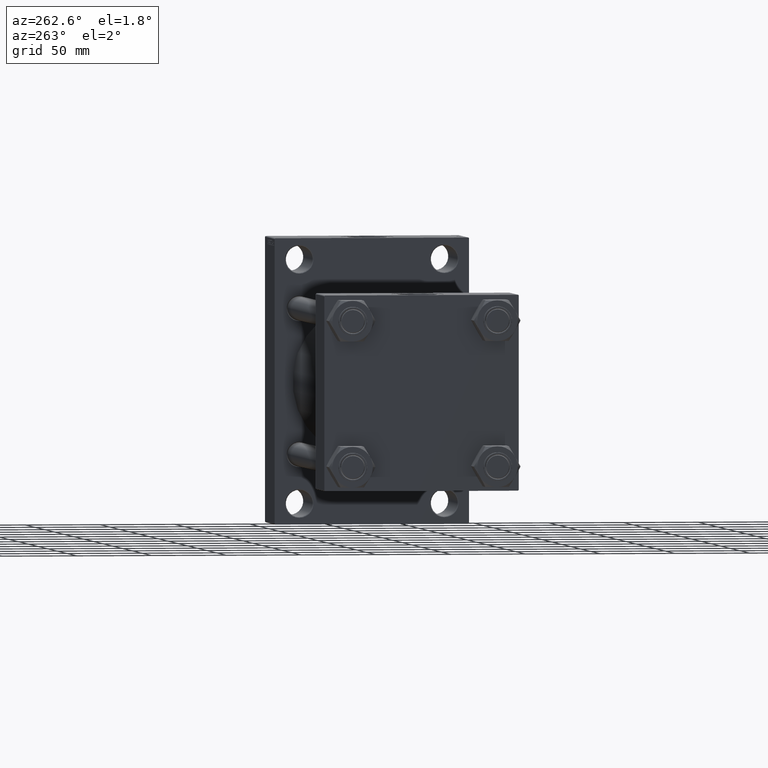
[diagram: clean part render]
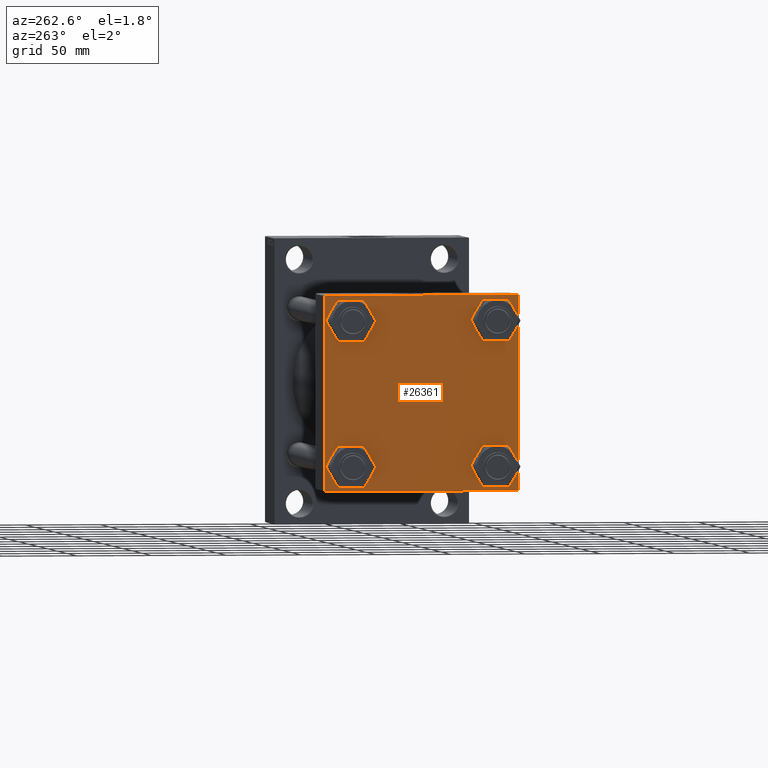
[diagram: same view with one face highlighted and labeled with its STEP entity id]
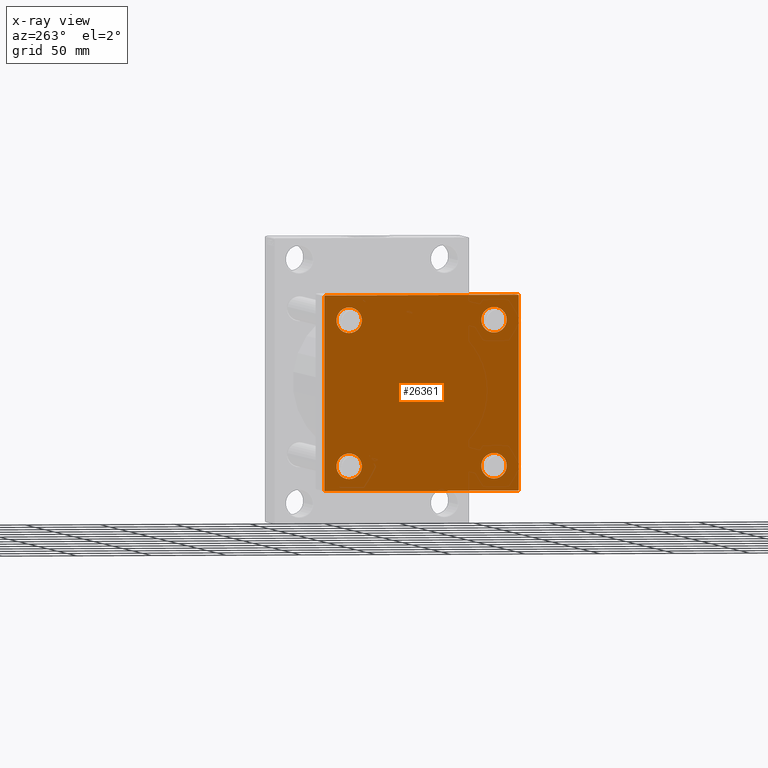
[diagram: x-ray of the same camera — body ghosted, the highlighted face saturated]
A machine part, auxiliary view. The second image highlights one B-rep face of the part: STEP entity #26361.
The next image is the same camera in x-ray: the body ghosted, the highlighted face saturated — about 0% of this face is hidden behind the body in this view.
In plain terms, the highlighted planar face has unit normal (-1, 0, 0).
Its self-contained STEP definition (entity closure, byte-faithful):
#84 = CARTESIAN_POINT ( 'NONE',  ( 0.000000000000000000, 65.00000000000000000, -64.49999999999995737 ) ) ;
#361 = CARTESIAN_POINT ( 'NONE',  ( 0.000000000000000000, 64.74999999999997158, -64.74999999999997158 ) ) ;
#411 = CIRCLE ( 'NONE', #21486, 8.500000000000007105 ) ;
#831 = VERTEX_POINT ( 'NONE', #26795 ) ;
#913 = CIRCLE ( 'NONE', #7170, 8.500000000000007105 ) ;
#1981 = EDGE_CURVE ( 'NONE', #13944, #23304, #4026, .T. ) ;
#2153 = CARTESIAN_POINT ( 'NONE',  ( 0.000000000000000000, 65.00000000000000000, 65.00000000000001421 ) ) ;
#2201 = VECTOR ( 'NONE', #7361, 1000.000000000000000 ) ;
#2668 = AXIS2_PLACEMENT_3D ( 'NONE', #37751, #15522, #48285 ) ;
#3362 = ORIENTED_EDGE ( 'NONE', *, *, #38425, .T. ) ;
#3982 = AXIS2_PLACEMENT_3D ( 'NONE', #16800, #13141, #38800 ) ;
#4026 = LINE ( 'NONE', #361, #41813 ) ;
#4498 = EDGE_LOOP ( 'NONE', ( #26412, #12221 ) ) ;
#4584 = EDGE_CURVE ( 'NONE', #18724, #19617, #913, .T. ) ;
#4611 = ORIENTED_EDGE ( 'NONE', *, *, #29134, .T. ) ;
#5564 = CARTESIAN_POINT ( 'NONE',  ( 0.000000000000000000, -64.49999999999994316, -65.00000000000000000 ) ) ;
#5777 = CIRCLE ( 'NONE', #19035, 8.500000000000007105 ) ;
#5794 = EDGE_CURVE ( 'NONE', #9395, #34525, #20474, .T. ) ;
#6263 = CARTESIAN_POINT ( 'NONE',  ( 0.000000000000000000, 48.45000000000000995, 56.95000000000002416 ) ) ;
#6292 = ORIENTED_EDGE ( 'NONE', *, *, #35714, .T. ) ;
#6336 = EDGE_LOOP ( 'NONE', ( #11647, #4611 ) ) ;
#6811 = VECTOR ( 'NONE', #32198, 1000.000000000000000 ) ;
#7170 = AXIS2_PLACEMENT_3D ( 'NONE', #16137, #42276, #42992 ) ;
#7361 = DIRECTION ( 'NONE',  ( 0.000000000000000000, 0.000000000000000000, -1.000000000000000000 ) ) ;
#7396 = CARTESIAN_POINT ( 'NONE',  ( 0.000000000000000000, 65.00000000000000000, 64.49999999999998579 ) ) ;
#7861 = LINE ( 'NONE', #42306, #17499 ) ;
#7937 = EDGE_CURVE ( 'NONE', #11855, #16925, #43320, .T. ) ;
#9395 = VERTEX_POINT ( 'NONE', #29330 ) ;
#9838 = CARTESIAN_POINT ( 'NONE',  ( 0.000000000000000000, 64.74999999999998579, 64.74999999999998579 ) ) ;
#10352 = CARTESIAN_POINT ( 'NONE',  ( 0.000000000000000000, -48.44999999999999574, -39.95000000000001705 ) ) ;
#11480 = CARTESIAN_POINT ( 'NONE',  ( 0.000000000000000000, 48.45000000000000995, -48.45000000000001705 ) ) ;
#11647 = ORIENTED_EDGE ( 'NONE', *, *, #13677, .T. ) ;
#11700 = DIRECTION ( 'NONE',  ( 0.000000000000000000, 0.000000000000000000, -1.000000000000000000 ) ) ;
#11855 = VERTEX_POINT ( 'NONE', #17867 ) ;
#11947 = DIRECTION ( 'NONE',  ( 0.000000000000000000, 0.000000000000000000, 1.000000000000000000 ) ) ;
#12194 = DIRECTION ( 'NONE',  ( 1.000000000000000000, -0.000000000000000000, 0.000000000000000000 ) ) ;
#12221 = ORIENTED_EDGE ( 'NONE', *, *, #5794, .T. ) ;
#12321 = AXIS2_PLACEMENT_3D ( 'NONE', #45670, #12194, #11947 ) ;
#12524 = CARTESIAN_POINT ( 'NONE',  ( 0.000000000000000000, 65.00000000000000000, -64.99999999999998579 ) ) ;
#12771 = FACE_OUTER_BOUND ( 'NONE', #14828, .T. ) ;
#13141 = DIRECTION ( 'NONE',  ( 1.000000000000000000, -0.000000000000000000, 0.000000000000000000 ) ) ;
#13677 = EDGE_CURVE ( 'NONE', #15584, #24260, #23745, .T. ) ;
#13748 = ORIENTED_EDGE ( 'NONE', *, *, #7937, .T. ) ;
#13919 = ORIENTED_EDGE ( 'NONE', *, *, #26499, .F. ) ;
#13944 = VERTEX_POINT ( 'NONE', #84 ) ;
#14182 = CARTESIAN_POINT ( 'NONE',  ( 0.000000000000000000, 48.45000000000000995, -56.95000000000002416 ) ) ;
#14828 = EDGE_LOOP ( 'NONE', ( #6292, #15978, #43766, #38756, #13919, #37704, #26212, #13748 ) ) ;
#15264 = DIRECTION ( 'NONE',  ( -0.000000000000000000, -0.7071067811865474617, -0.7071067811865474617 ) ) ;
#15345 = EDGE_LOOP ( 'NONE', ( #3362, #16717 ) ) ;
#15522 = DIRECTION ( 'NONE',  ( 1.000000000000000000, -0.000000000000000000, 0.000000000000000000 ) ) ;
#15584 = VERTEX_POINT ( 'NONE', #35009 ) ;
#15701 = FACE_BOUND ( 'NONE', #6336, .T. ) ;
#15978 = ORIENTED_EDGE ( 'NONE', *, *, #1981, .T. ) ;
#16137 = CARTESIAN_POINT ( 'NONE',  ( 0.000000000000000000, 48.45000000000000995, 48.45000000000001705 ) ) ;
#16547 = VERTEX_POINT ( 'NONE', #10352 ) ;
#16593 = VECTOR ( 'NONE', #11700, 1000.000000000000000 ) ;
#16717 = ORIENTED_EDGE ( 'NONE', *, *, #45257, .T. ) ;
#16800 = CARTESIAN_POINT ( 'NONE',  ( 0.000000000000000000, -48.44999999999999574, 48.45000000000003126 ) ) ;
#16925 = VERTEX_POINT ( 'NONE', #7396 ) ;
#17499 = VECTOR ( 'NONE', #27657, 1000.000000000000000 ) ;
#17606 = DIRECTION ( 'NONE',  ( 1.000000000000000000, -0.000000000000000000, 0.000000000000000000 ) ) ;
#17867 = CARTESIAN_POINT ( 'NONE',  ( 0.000000000000000000, 64.49999999999997158, 65.00000000000001421 ) ) ;
#18028 = DIRECTION ( 'NONE',  ( 1.000000000000000000, -0.000000000000000000, 0.000000000000000000 ) ) ;
#18127 = ORIENTED_EDGE ( 'NONE', *, *, #4584, .T. ) ;
#18555 = CARTESIAN_POINT ( 'NONE',  ( 0.000000000000000000, 65.00000000000000000, 65.00000000000001421 ) ) ;
#18595 = CARTESIAN_POINT ( 'NONE',  ( 0.000000000000000000, -65.00000000000000000, 65.00000000000000000 ) ) ;
#18724 = VERTEX_POINT ( 'NONE', #6263 ) ;
#19035 = AXIS2_PLACEMENT_3D ( 'NONE', #33000, #17606, #43759 ) ;
#19617 = VERTEX_POINT ( 'NONE', #34277 ) ;
#20092 = FACE_BOUND ( 'NONE', #29584, .T. ) ;
#20211 = VERTEX_POINT ( 'NONE', #23115 ) ;
#20474 = CIRCLE ( 'NONE', #26740, 8.500000000000007105 ) ;
#21486 = AXIS2_PLACEMENT_3D ( 'NONE', #43943, #18028, #24897 ) ;
#21855 = LINE ( 'NONE', #29439, #37352 ) ;
#23115 = CARTESIAN_POINT ( 'NONE',  ( 0.000000000000000000, -65.00000000000000000, 64.50000000000000000 ) ) ;
#23304 = VERTEX_POINT ( 'NONE', #24208 ) ;
#23559 = EDGE_CURVE ( 'NONE', #11855, #27887, #35619, .T. ) ;
#23745 = CIRCLE ( 'NONE', #2668, 8.500000000000007105 ) ;
#24208 = CARTESIAN_POINT ( 'NONE',  ( 0.000000000000000000, 64.49999999999997158, -64.99999999999998579 ) ) ;
#24260 = VERTEX_POINT ( 'NONE', #14182 ) ;
#24331 = ORIENTED_EDGE ( 'NONE', *, *, #24412, .T. ) ;
#24412 = EDGE_CURVE ( 'NONE', #19617, #18724, #31808, .T. ) ;
#24897 = DIRECTION ( 'NONE',  ( 0.000000000000000000, 0.000000000000000000, 1.000000000000000000 ) ) ;
#24976 = LINE ( 'NONE', #18595, #2201 ) ;
#25541 = DIRECTION ( 'NONE',  ( 0.000000000000000000, -0.7071067811865279218, 0.7071067811865671127 ) ) ;
#25569 = EDGE_CURVE ( 'NONE', #23304, #30930, #46001, .T. ) ;
#26212 = ORIENTED_EDGE ( 'NONE', *, *, #23559, .F. ) ;
#26361 = ADVANCED_FACE ( 'NONE', ( #37943, #30374, #15701, #20092, #12771 ), #27440, .T. ) ;
#26412 = ORIENTED_EDGE ( 'NONE', *, *, #30975, .T. ) ;
#26422 = VERTEX_POINT ( 'NONE', #32551 ) ;
#26499 = EDGE_CURVE ( 'NONE', #20211, #26422, #24976, .T. ) ;
#26611 = LINE ( 'NONE', #18555, #16593 ) ;
#26740 = AXIS2_PLACEMENT_3D ( 'NONE', #43053, #35964, #32306 ) ;
#26795 = CARTESIAN_POINT ( 'NONE',  ( 0.000000000000000000, -48.44999999999999574, -56.95000000000003837 ) ) ;
#27440 = PLANE ( 'NONE',  #45103 ) ;
#27546 = EDGE_CURVE ( 'NONE', #30930, #26422, #21855, .T. ) ;
#27657 = DIRECTION ( 'NONE',  ( -0.000000000000000000, 0.7071067811865672237, 0.7071067811865279218 ) ) ;
#27887 = VERTEX_POINT ( 'NONE', #28897 ) ;
#28897 = CARTESIAN_POINT ( 'NONE',  ( 0.000000000000000000, -64.49999999999997158, 65.00000000000000000 ) ) ;
#29134 = EDGE_CURVE ( 'NONE', #24260, #15584, #42865, .T. ) ;
#29330 = CARTESIAN_POINT ( 'NONE',  ( 0.000000000000000000, -48.44999999999999574, 39.95000000000001705 ) ) ;
#29439 = CARTESIAN_POINT ( 'NONE',  ( 0.000000000000000000, -64.75000000000176215, -64.74999999999816680 ) ) ;
#29584 = EDGE_LOOP ( 'NONE', ( #18127, #24331 ) ) ;
#29721 = CIRCLE ( 'NONE', #3982, 8.500000000000007105 ) ;
#30374 = FACE_BOUND ( 'NONE', #15345, .T. ) ;
#30930 = VERTEX_POINT ( 'NONE', #5564 ) ;
#30975 = EDGE_CURVE ( 'NONE', #34525, #9395, #29721, .T. ) ;
#31335 = DIRECTION ( 'NONE',  ( -1.000000000000000000, 0.000000000000000000, -0.000000000000000000 ) ) ;
#31808 = CIRCLE ( 'NONE', #12321, 8.500000000000007105 ) ;
#32198 = DIRECTION ( 'NONE',  ( 0.000000000000000000, -1.000000000000000000, -1.067522139062650425E-16 ) ) ;
#32306 = DIRECTION ( 'NONE',  ( 0.000000000000000000, 0.000000000000000000, 1.000000000000000000 ) ) ;
#32551 = CARTESIAN_POINT ( 'NONE',  ( 0.000000000000000000, -65.00000000000000000, -64.49999999999991473 ) ) ;
#33000 = CARTESIAN_POINT ( 'NONE',  ( 0.000000000000000000, -48.44999999999999574, -48.45000000000003126 ) ) ;
#33944 = DIRECTION ( 'NONE',  ( 0.000000000000000000, 0.000000000000000000, 1.000000000000000000 ) ) ;
#34277 = CARTESIAN_POINT ( 'NONE',  ( 0.000000000000000000, 48.45000000000000995, 39.95000000000000284 ) ) ;
#34525 = VERTEX_POINT ( 'NONE', #40365 ) ;
#35003 = DIRECTION ( 'NONE',  ( -0.000000000000000000, 0.000000000000000000, 1.000000000000000000 ) ) ;
#35009 = CARTESIAN_POINT ( 'NONE',  ( 0.000000000000000000, 48.45000000000000995, -39.95000000000000284 ) ) ;
#35619 = LINE ( 'NONE', #2153, #6811 ) ;
#35714 = EDGE_CURVE ( 'NONE', #16925, #13944, #26611, .T. ) ;
#35964 = DIRECTION ( 'NONE',  ( 1.000000000000000000, -0.000000000000000000, 0.000000000000000000 ) ) ;
#37352 = VECTOR ( 'NONE', #25541, 1000.000000000000000 ) ;
#37704 = ORIENTED_EDGE ( 'NONE', *, *, #42507, .T. ) ;
#37751 = CARTESIAN_POINT ( 'NONE',  ( 0.000000000000000000, 48.45000000000000995, -48.45000000000001705 ) ) ;
#37943 = FACE_BOUND ( 'NONE', #4498, .T. ) ;
#38425 = EDGE_CURVE ( 'NONE', #16547, #831, #5777, .T. ) ;
#38756 = ORIENTED_EDGE ( 'NONE', *, *, #27546, .T. ) ;
#38800 = DIRECTION ( 'NONE',  ( 0.000000000000000000, 0.000000000000000000, 1.000000000000000000 ) ) ;
#40365 = CARTESIAN_POINT ( 'NONE',  ( 0.000000000000000000, -48.44999999999999574, 56.95000000000003837 ) ) ;
#41338 = AXIS2_PLACEMENT_3D ( 'NONE', #11480, #41521, #33944 ) ;
#41521 = DIRECTION ( 'NONE',  ( 1.000000000000000000, -0.000000000000000000, 0.000000000000000000 ) ) ;
#41813 = VECTOR ( 'NONE', #15264, 1000.000000000000114 ) ;
#42276 = DIRECTION ( 'NONE',  ( 1.000000000000000000, -0.000000000000000000, 0.000000000000000000 ) ) ;
#42306 = CARTESIAN_POINT ( 'NONE',  ( -0.000000000000000000, -64.74999999999819522, 64.75000000000179057 ) ) ;
#42325 = DIRECTION ( 'NONE',  ( 0.000000000000000000, -1.000000000000000000, -1.067522139062650425E-16 ) ) ;
#42358 = DIRECTION ( 'NONE',  ( 0.000000000000000000, 0.7071067811865474617, -0.7071067811865474617 ) ) ;
#42507 = EDGE_CURVE ( 'NONE', #20211, #27887, #7861, .T. ) ;
#42865 = CIRCLE ( 'NONE', #41338, 8.500000000000007105 ) ;
#42992 = DIRECTION ( 'NONE',  ( 0.000000000000000000, 0.000000000000000000, 1.000000000000000000 ) ) ;
#43046 = VECTOR ( 'NONE', #42358, 1000.000000000000114 ) ;
#43053 = CARTESIAN_POINT ( 'NONE',  ( 0.000000000000000000, -48.44999999999999574, 48.45000000000003126 ) ) ;
#43320 = LINE ( 'NONE', #9838, #43046 ) ;
#43759 = DIRECTION ( 'NONE',  ( 0.000000000000000000, 0.000000000000000000, 1.000000000000000000 ) ) ;
#43766 = ORIENTED_EDGE ( 'NONE', *, *, #25569, .T. ) ;
#43943 = CARTESIAN_POINT ( 'NONE',  ( 0.000000000000000000, -48.44999999999999574, -48.45000000000003126 ) ) ;
#45103 = AXIS2_PLACEMENT_3D ( 'NONE', #45517, #31335, #35003 ) ;
#45257 = EDGE_CURVE ( 'NONE', #831, #16547, #411, .T. ) ;
#45517 = CARTESIAN_POINT ( 'NONE',  ( 0.000000000000000000, 0.000000000000000000, 0.000000000000000000 ) ) ;
#45670 = CARTESIAN_POINT ( 'NONE',  ( 0.000000000000000000, 48.45000000000000995, 48.45000000000001705 ) ) ;
#46001 = LINE ( 'NONE', #12524, #47446 ) ;
#47446 = VECTOR ( 'NONE', #42325, 1000.000000000000000 ) ;
#48285 = DIRECTION ( 'NONE',  ( 0.000000000000000000, 0.000000000000000000, 1.000000000000000000 ) ) ;